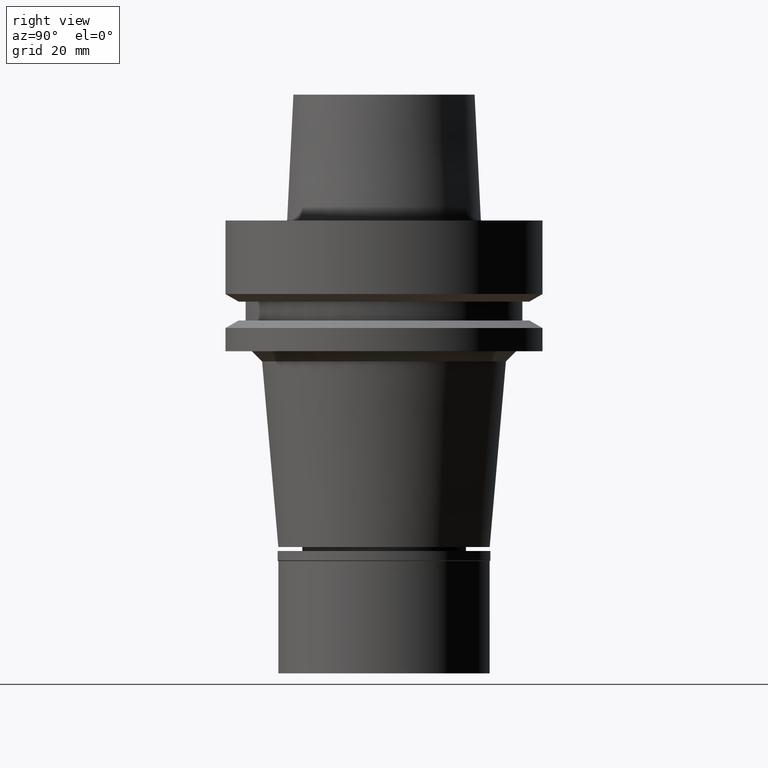
[diagram: clean part render]
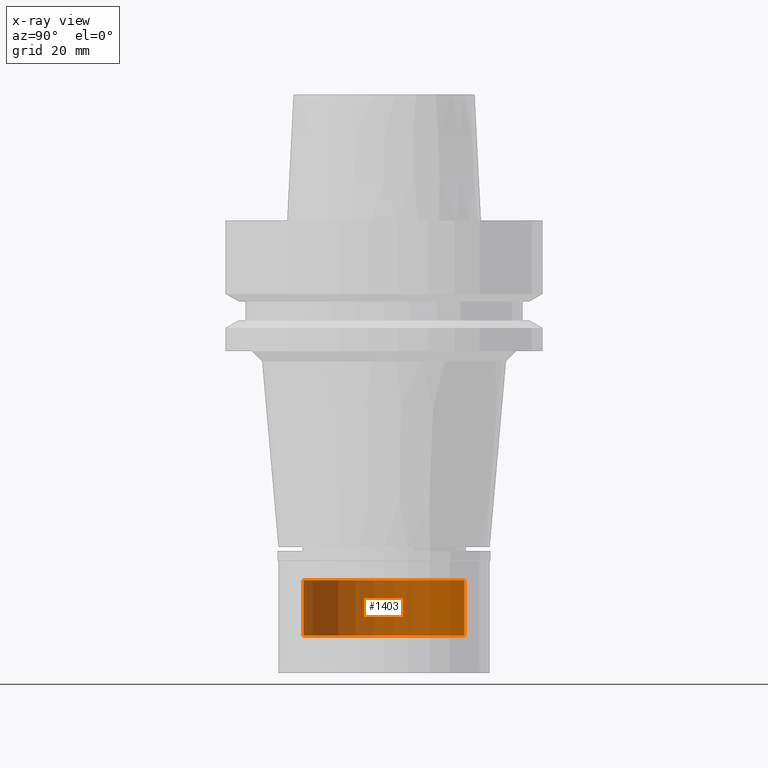
[diagram: x-ray — body ghosted, one internal face saturated and labeled with its STEP entity id]
A machine part, right view, then the same camera in x-ray: the body is ghosted and one INTERNAL B-rep face — a face not visible from any outside direction — is saturated and labeled: STEP entity #1403.
In plain terms, the highlighted cylindrical surface (partial cylindrical patch) has radius 16 mm, axis along (0, 0, 1).
Its self-contained STEP definition (entity closure, byte-faithful):
#15 = EDGE_CURVE ( 'NONE', #474, #2039, #1826, .T. ) ;
#88 = VECTOR ( 'NONE', #2530, 1000.000000000000000 ) ;
#96 = CARTESIAN_POINT ( 'NONE',  ( 0.0000000000000000000, 0.0000000000000000000, -71.50000000000000000 ) ) ;
#121 = AXIS2_PLACEMENT_3D ( 'NONE', #999, #1417, #1247 ) ;
#294 = CIRCLE ( 'NONE', #1019, 16.00000000000000000 ) ;
#349 = DIRECTION ( 'NONE',  ( 0.0000000000000000000, 0.0000000000000000000, 1.000000000000000000 ) ) ;
#474 = VERTEX_POINT ( 'NONE', #1978 ) ;
#483 = DIRECTION ( 'NONE',  ( 0.0000000000000000000, -1.000000000000000000, 0.0000000000000000000 ) ) ;
#501 = VECTOR ( 'NONE', #1484, 1000.000000000000000 ) ;
#529 = DIRECTION ( 'NONE',  ( 0.0000000000000000000, 1.000000000000000000, 0.0000000000000000000 ) ) ;
#609 = ORIENTED_EDGE ( 'NONE', *, *, #1106, .F. ) ;
#754 = CARTESIAN_POINT ( 'NONE',  ( 0.0000000000000000000, 0.0000000000000000000, -82.50000000000000000 ) ) ;
#761 = EDGE_LOOP ( 'NONE', ( #1074, #609, #1730, #1825 ) ) ;
#767 = VERTEX_POINT ( 'NONE', #1235 ) ;
#999 = CARTESIAN_POINT ( 'NONE',  ( 0.0000000000000000000, 0.0000000000000000000, -87.87500000000000000 ) ) ;
#1013 = CARTESIAN_POINT ( 'NONE',  ( 0.0000000000000000000, -16.00000000000000000, -71.50000000000000000 ) ) ;
#1019 = AXIS2_PLACEMENT_3D ( 'NONE', #754, #349, #529 ) ;
#1074 = ORIENTED_EDGE ( 'NONE', *, *, #2494, .T. ) ;
#1106 = EDGE_CURVE ( 'NONE', #767, #1362, #2785, .T. ) ;
#1235 = CARTESIAN_POINT ( 'NONE',  ( 0.0000000000000000000, -16.00000000000000000, -71.50000000000000000 ) ) ;
#1247 = DIRECTION ( 'NONE',  ( 0.0000000000000000000, 1.000000000000000000, 0.0000000000000000000 ) ) ;
#1311 = EDGE_CURVE ( 'NONE', #767, #474, #1602, .T. ) ;
#1362 = VERTEX_POINT ( 'NONE', #1679 ) ;
#1403 = ADVANCED_FACE ( 'NONE', ( #1857 ), #1894, .T. ) ;
#1417 = DIRECTION ( 'NONE',  ( 0.0000000000000000000, 0.0000000000000000000, 1.000000000000000000 ) ) ;
#1484 = DIRECTION ( 'NONE',  ( 0.0000000000000000000, 0.0000000000000000000, -1.000000000000000000 ) ) ;
#1602 = CIRCLE ( 'NONE', #2806, 16.00000000000000000 ) ;
#1679 = CARTESIAN_POINT ( 'NONE',  ( 0.0000000000000000000, -16.00000000000000000, -82.50000000000000000 ) ) ;
#1730 = ORIENTED_EDGE ( 'NONE', *, *, #1311, .T. ) ;
#1825 = ORIENTED_EDGE ( 'NONE', *, *, #15, .T. ) ;
#1826 = LINE ( 'NONE', #2301, #88 ) ;
#1857 = FACE_OUTER_BOUND ( 'NONE', #761, .T. ) ;
#1894 = CYLINDRICAL_SURFACE ( 'NONE', #121, 16.00000000000000000 ) ;
#1978 = CARTESIAN_POINT ( 'NONE',  ( 0.0000000000000000000, 16.00000000000000000, -71.50000000000000000 ) ) ;
#2039 = VERTEX_POINT ( 'NONE', #2615 ) ;
#2301 = CARTESIAN_POINT ( 'NONE',  ( 0.0000000000000000000, 16.00000000000000000, -71.50000000000000000 ) ) ;
#2471 = DIRECTION ( 'NONE',  ( 0.0000000000000000000, 0.0000000000000000000, -1.000000000000000000 ) ) ;
#2494 = EDGE_CURVE ( 'NONE', #2039, #1362, #294, .T. ) ;
#2530 = DIRECTION ( 'NONE',  ( 0.0000000000000000000, 0.0000000000000000000, -1.000000000000000000 ) ) ;
#2615 = CARTESIAN_POINT ( 'NONE',  ( 0.0000000000000000000, 16.00000000000000000, -82.50000000000000000 ) ) ;
#2785 = LINE ( 'NONE', #1013, #501 ) ;
#2806 = AXIS2_PLACEMENT_3D ( 'NONE', #96, #2471, #483 ) ;